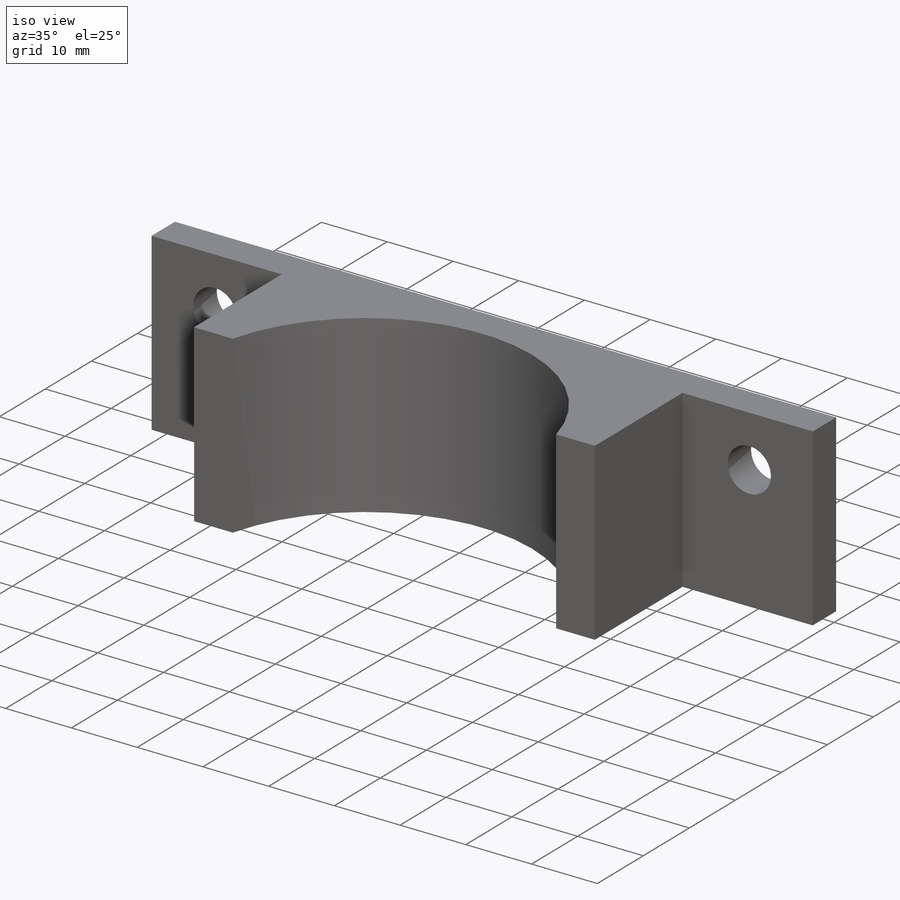
[diagram: iso view]
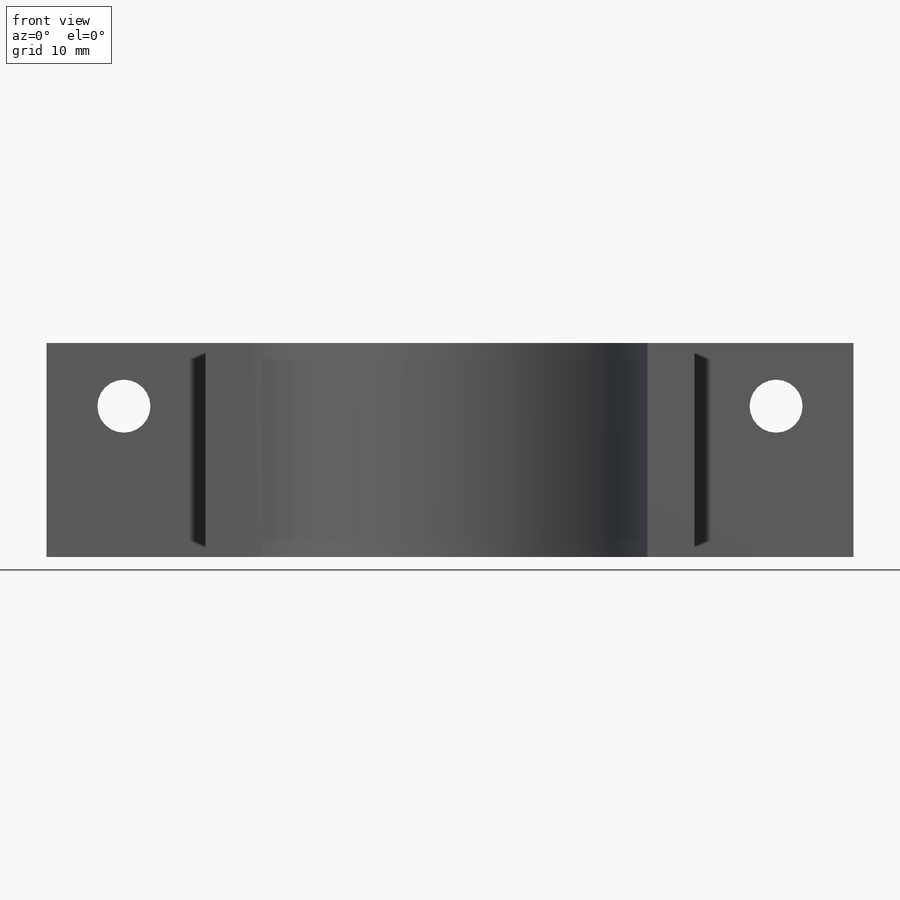
[diagram: front view]
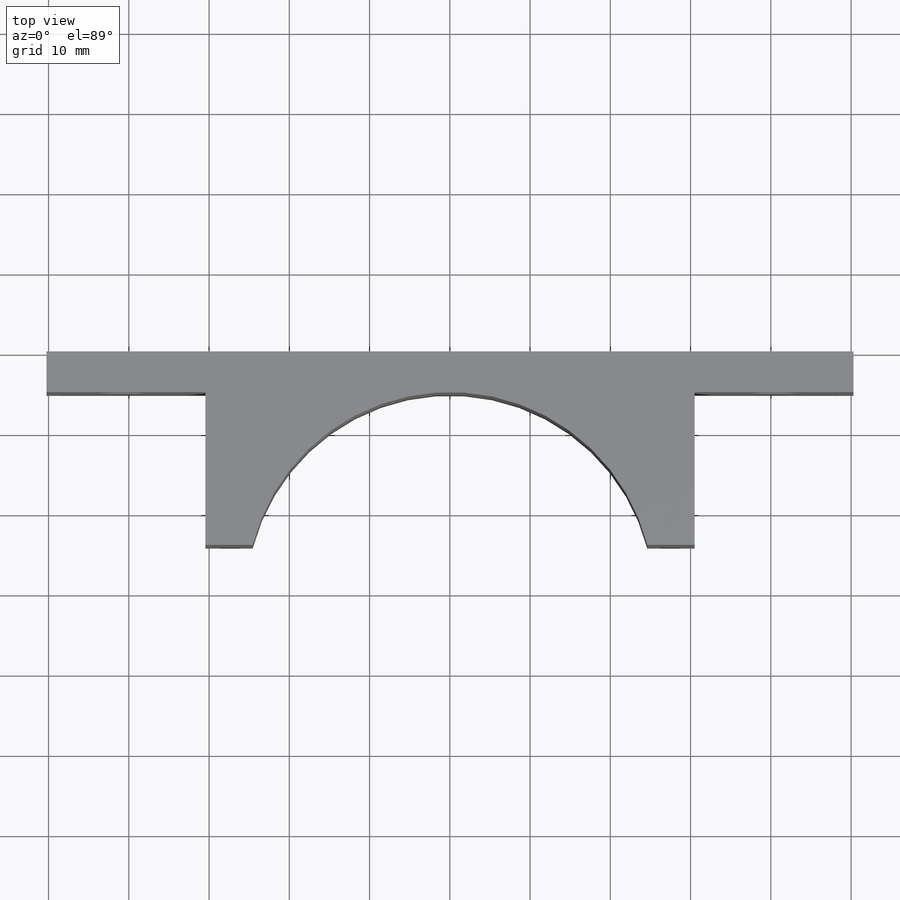
[diagram: top view]
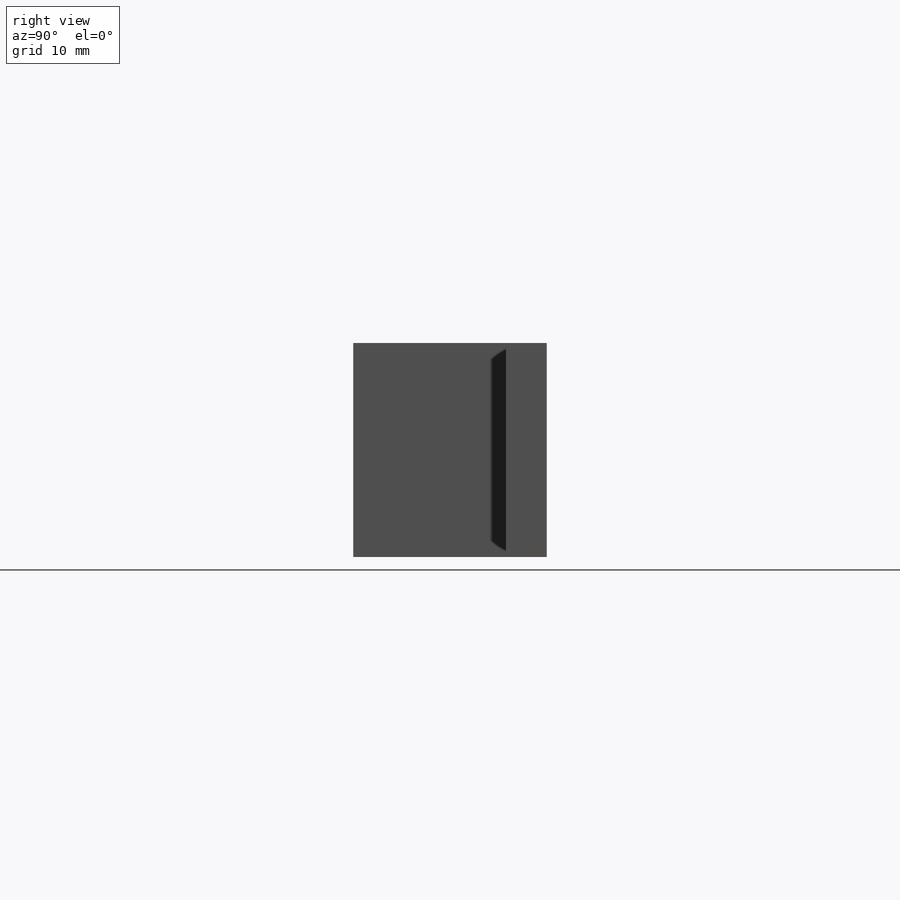
[diagram: right view]
SOLIDWORKS PART (.sldprt)
format: sldprt  version: not decoded by parser v0  size: 203,776 bytes
history: native  units: mm
features: sketch x4, extrude x2, cut_extrude x2, material x1 (+12 scaffold rows collapsed)
feature tree (21):
  scaffold x12  (default folders/planes/origin — collapsed)
  material  "Material <not specified>"
  sketch  "Sketch1"  dims[D3=6.604mm D4=6.604mm D5=6.604mm D6=6.604mm D1=100.584mm D2=53.34mm D7=7.874mm D8=7.874mm D9=9.652mm D10=9.652mm D11=7.874mm D12=7.874mm D13=9.652mm D14=9.652mm]
  extrude  "Boss-Extrude2"  Depth=5.08mm
  sketch  "Sketch5"  dims[D1=10.16mm D2=10.16mm D3=64.516mm]
  extrude  "Boss-Extrude3"  Depth=19.05mm
  sketch  "Sketch6"  dims[D1=50.8mm D2=30.48mm D3=50.292mm]
  cut_extrude  "Cut-Extrude4"  [1 undecoded]
  sketch  "Sketch7"  dims[D1=0.0mm D2=26.67mm]
  cut_extrude  "Cut-Extrude5"  [1 undecoded]
decode coverage: 6 of 8 modeling features carry decoded parameters
note: 2 parameter values undecoded
note: suppression state not decoded; provenance and decode notes live in map.json
